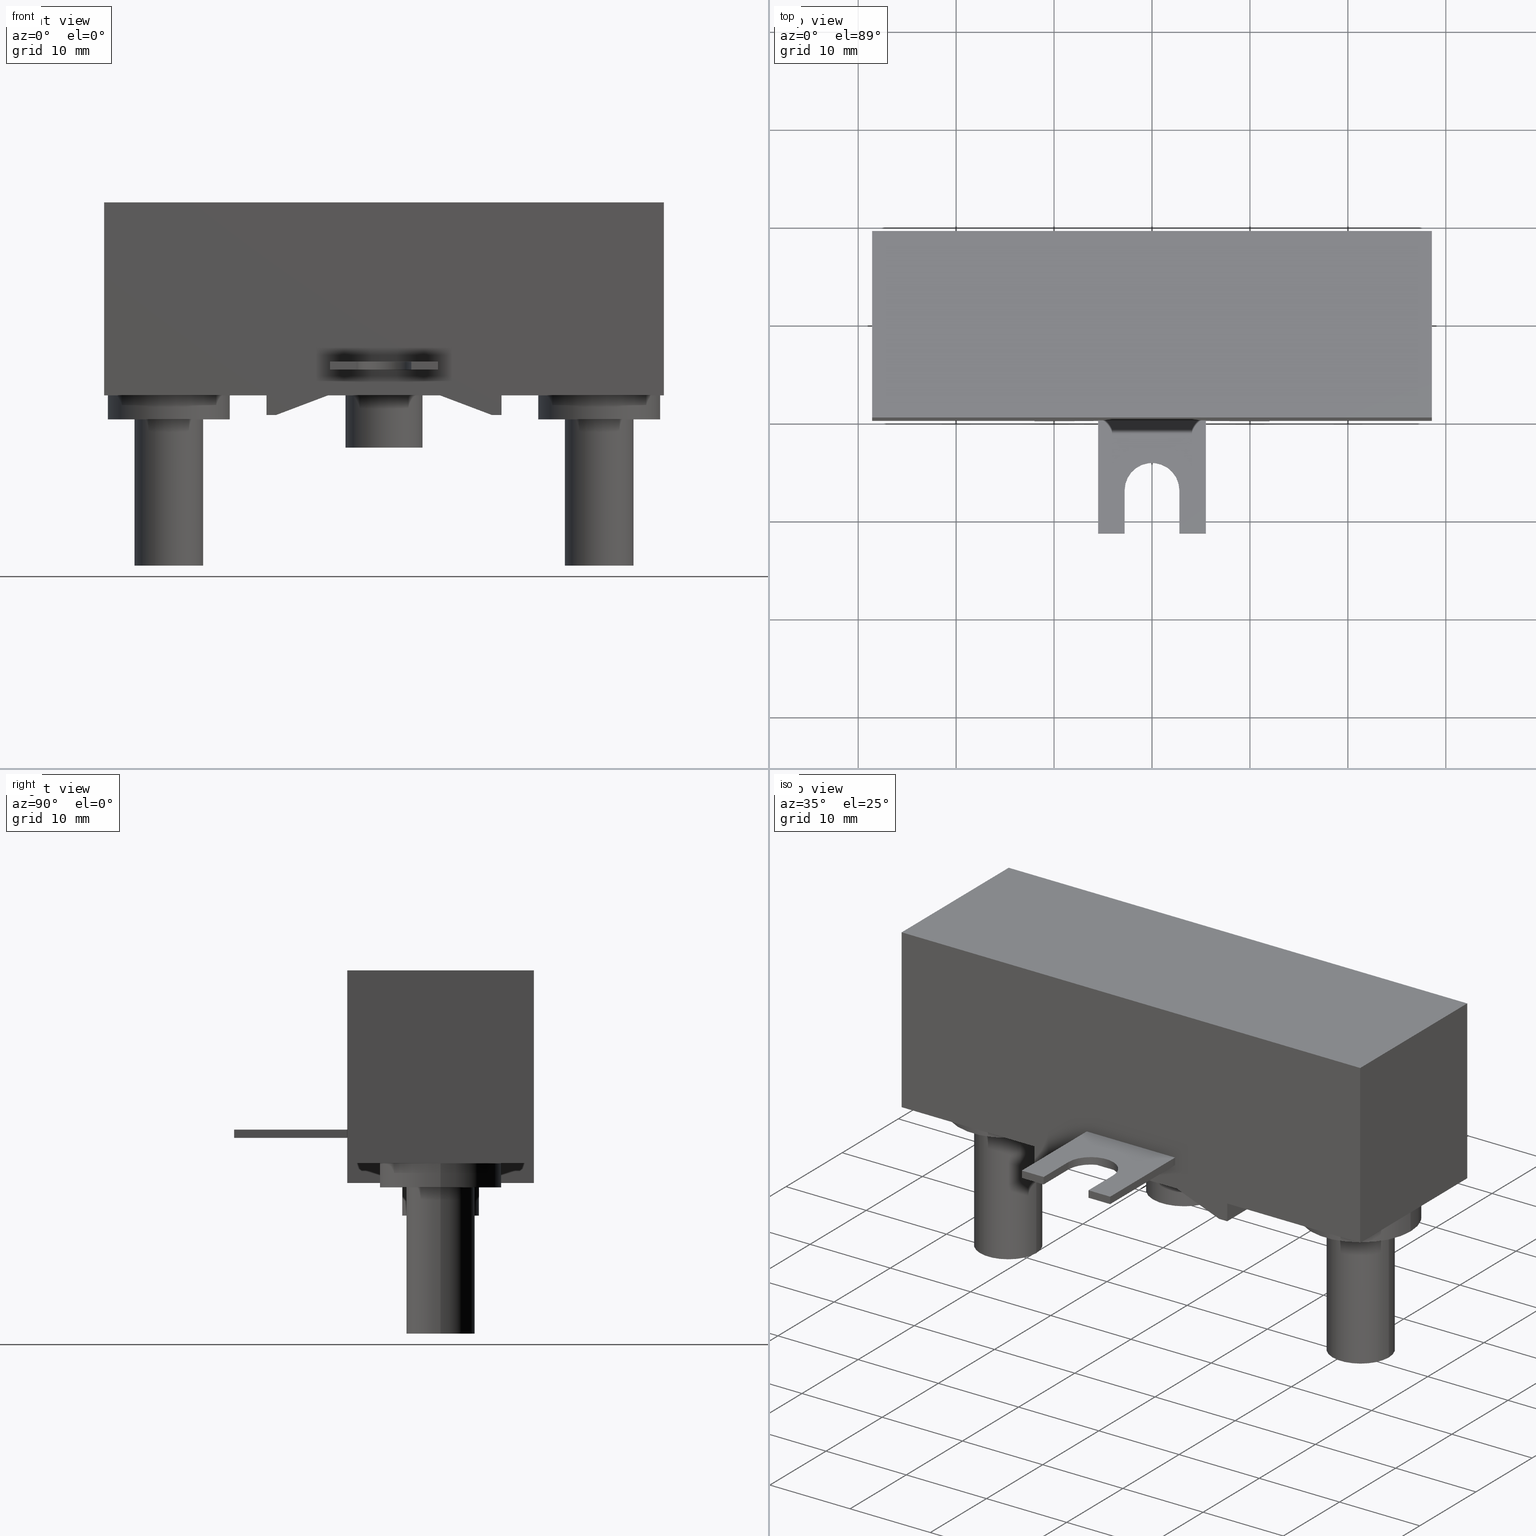
[diagram: canonical four-view strip — front | top / right | iso, engineering-drawing reading convention]
A machine part, canonical four-view strip (front | top / right | iso — engineering-drawing reading convention). The complete STEP part file that produces these views, byte-faithful:
ISO-10303-21;
HEADER;
FILE_DESCRIPTION((''),'2;1');
FILE_NAME('2377-45-HS','2012-08-28T',('ryans'),('Bourns, Inc.'),
'PRO/ENGINEER BY PARAMETRIC TECHNOLOGY CORPORATION, 2010100',
'PRO/ENGINEER BY PARAMETRIC TECHNOLOGY CORPORATION, 2010100','');
FILE_SCHEMA(('CONFIG_CONTROL_DESIGN'));
ENDSEC;
DATA;
#1=DIRECTION('',(0.E0,0.E0,1.E0));
#2=VECTOR('',#1,1.97E1);
#3=CARTESIAN_POINT('',(-2.8575E1,0.E0,-9.85E0));
#4=LINE('',#3,#2);
#5=DIRECTION('',(1.E0,0.E0,0.E0));
#6=VECTOR('',#5,5.715E1);
#7=CARTESIAN_POINT('',(-2.8575E1,0.E0,9.85E0));
#8=LINE('',#7,#6);
#9=DIRECTION('',(0.E0,0.E0,-1.E0));
#10=VECTOR('',#9,1.97E1);
#11=CARTESIAN_POINT('',(2.8575E1,0.E0,9.85E0));
#12=LINE('',#11,#10);
#13=DIRECTION('',(-1.E0,0.E0,0.E0));
#14=VECTOR('',#13,1.6575E1);
#15=CARTESIAN_POINT('',(2.8575E1,0.E0,-9.85E0));
#16=LINE('',#15,#14);
#17=DIRECTION('',(0.E0,0.E0,-1.E0));
#18=VECTOR('',#17,2.E0);
#19=CARTESIAN_POINT('',(1.2E1,0.E0,-9.85E0));
#20=LINE('',#19,#18);
#21=DIRECTION('',(-1.E0,0.E0,0.E0));
#22=VECTOR('',#21,1.E0);
#23=CARTESIAN_POINT('',(1.2E1,0.E0,-1.185E1));
#24=LINE('',#23,#22);
#25=DIRECTION('',(-9.352704256096E-1,0.E0,3.539339358977E-1));
#26=VECTOR('',#25,5.650772071142E0);
#27=CARTESIAN_POINT('',(1.1E1,0.E0,-1.185E1));
#28=LINE('',#27,#26);
#29=DIRECTION('',(-1.E0,0.E0,0.E0));
#30=VECTOR('',#29,1.143E1);
#31=CARTESIAN_POINT('',(5.715E0,0.E0,-9.85E0));
#32=LINE('',#31,#30);
#33=DIRECTION('',(-9.352704256096E-1,0.E0,-3.539339358977E-1));
#34=VECTOR('',#33,5.650772071142E0);
#35=CARTESIAN_POINT('',(-5.715E0,0.E0,-9.85E0));
#36=LINE('',#35,#34);
#37=DIRECTION('',(-1.E0,0.E0,0.E0));
#38=VECTOR('',#37,1.E0);
#39=CARTESIAN_POINT('',(-1.1E1,0.E0,-1.185E1));
#40=LINE('',#39,#38);
#41=DIRECTION('',(0.E0,0.E0,1.E0));
#42=VECTOR('',#41,2.E0);
#43=CARTESIAN_POINT('',(-1.2E1,0.E0,-1.185E1));
#44=LINE('',#43,#42);
#45=DIRECTION('',(-1.E0,0.E0,0.E0));
#46=VECTOR('',#45,1.6575E1);
#47=CARTESIAN_POINT('',(-1.2E1,0.E0,-9.85E0));
#48=LINE('',#47,#46);
#49=DIRECTION('',(1.E0,0.E0,0.E0));
#50=VECTOR('',#49,1.1E1);
#51=CARTESIAN_POINT('',(-5.5E0,0.E0,-6.41E0));
#52=LINE('',#51,#50);
#53=DIRECTION('',(0.E0,0.E0,-1.E0));
#54=VECTOR('',#53,8.4E-1);
#55=CARTESIAN_POINT('',(-5.5E0,0.E0,-6.41E0));
#56=LINE('',#55,#54);
#57=DIRECTION('',(1.E0,0.E0,0.E0));
#58=VECTOR('',#57,1.1E1);
#59=CARTESIAN_POINT('',(-5.5E0,0.E0,-7.25E0));
#60=LINE('',#59,#58);
#61=DIRECTION('',(0.E0,0.E0,-1.E0));
#62=VECTOR('',#61,8.4E-1);
#63=CARTESIAN_POINT('',(5.5E0,0.E0,-6.41E0));
#64=LINE('',#63,#62);
#65=DIRECTION('',(0.E0,1.E0,0.E0));
#66=VECTOR('',#65,1.905E1);
#67=CARTESIAN_POINT('',(-2.8575E1,0.E0,-9.85E0));
#68=LINE('',#67,#66);
#69=DIRECTION('',(0.E0,1.E0,0.E0));
#70=VECTOR('',#69,1.905E1);
#71=CARTESIAN_POINT('',(-1.2E1,0.E0,-9.85E0));
#72=LINE('',#71,#70);
#73=CARTESIAN_POINT('',(-2.197E1,9.525E0,-9.85E0));
#74=DIRECTION('',(0.E0,0.E0,-1.E0));
#75=DIRECTION('',(1.E0,0.E0,0.E0));
#76=AXIS2_PLACEMENT_3D('',#73,#74,#75);
#78=CARTESIAN_POINT('',(-2.197E1,9.525E0,-9.85E0));
#79=DIRECTION('',(0.E0,0.E0,-1.E0));
#80=DIRECTION('',(-1.E0,0.E0,0.E0));
#81=AXIS2_PLACEMENT_3D('',#78,#79,#80);
#83=DIRECTION('',(0.E0,1.E0,0.E0));
#84=VECTOR('',#83,1.905E1);
#85=CARTESIAN_POINT('',(-1.2E1,0.E0,-1.185E1));
#86=LINE('',#85,#84);
#87=DIRECTION('',(0.E0,1.E0,0.E0));
#88=VECTOR('',#87,1.905E1);
#89=CARTESIAN_POINT('',(-1.1E1,0.E0,-1.185E1));
#90=LINE('',#89,#88);
#91=DIRECTION('',(0.E0,1.E0,0.E0));
#92=VECTOR('',#91,1.905E1);
#93=CARTESIAN_POINT('',(-5.715E0,0.E0,-9.85E0));
#94=LINE('',#93,#92);
#95=DIRECTION('',(0.E0,1.E0,0.E0));
#96=VECTOR('',#95,1.905E1);
#97=CARTESIAN_POINT('',(5.715E0,0.E0,-9.85E0));
#98=LINE('',#97,#96);
#99=CARTESIAN_POINT('',(0.E0,9.525E0,-9.85E0));
#100=DIRECTION('',(0.E0,0.E0,-1.E0));
#101=DIRECTION('',(-1.E0,0.E0,0.E0));
#102=AXIS2_PLACEMENT_3D('',#99,#100,#101);
#104=CARTESIAN_POINT('',(0.E0,9.525E0,-9.85E0));
#105=DIRECTION('',(0.E0,0.E0,-1.E0));
#106=DIRECTION('',(1.E0,0.E0,0.E0));
#107=AXIS2_PLACEMENT_3D('',#104,#105,#106);
#109=DIRECTION('',(0.E0,1.E0,0.E0));
#110=VECTOR('',#109,1.905E1);
#111=CARTESIAN_POINT('',(1.1E1,0.E0,-1.185E1));
#112=LINE('',#111,#110);
#113=DIRECTION('',(0.E0,1.E0,0.E0));
#114=VECTOR('',#113,1.905E1);
#115=CARTESIAN_POINT('',(1.2E1,0.E0,-1.185E1));
#116=LINE('',#115,#114);
#117=DIRECTION('',(0.E0,1.E0,0.E0));
#118=VECTOR('',#117,1.905E1);
#119=CARTESIAN_POINT('',(1.2E1,0.E0,-9.85E0));
#120=LINE('',#119,#118);
#121=DIRECTION('',(0.E0,1.E0,0.E0));
#122=VECTOR('',#121,1.905E1);
#123=CARTESIAN_POINT('',(2.8575E1,0.E0,-9.85E0));
#124=LINE('',#123,#122);
#125=CARTESIAN_POINT('',(2.197E1,9.525E0,-9.85E0));
#126=DIRECTION('',(0.E0,0.E0,-1.E0));
#127=DIRECTION('',(1.E0,0.E0,0.E0));
#128=AXIS2_PLACEMENT_3D('',#125,#126,#127);
#130=CARTESIAN_POINT('',(2.197E1,9.525E0,-9.85E0));
#131=DIRECTION('',(0.E0,0.E0,-1.E0));
#132=DIRECTION('',(-1.E0,0.E0,0.E0));
#133=AXIS2_PLACEMENT_3D('',#130,#131,#132);
#135=DIRECTION('',(0.E0,1.E0,0.E0));
#136=VECTOR('',#135,1.905E1);
#137=CARTESIAN_POINT('',(2.8575E1,0.E0,9.85E0));
#138=LINE('',#137,#136);
#139=DIRECTION('',(0.E0,1.E0,0.E0));
#140=VECTOR('',#139,1.905E1);
#141=CARTESIAN_POINT('',(-2.8575E1,0.E0,9.85E0));
#142=LINE('',#141,#140);
#143=DIRECTION('',(0.E0,0.E0,1.E0));
#144=VECTOR('',#143,1.97E1);
#145=CARTESIAN_POINT('',(-2.8575E1,1.905E1,-9.85E0));
#146=LINE('',#145,#144);
#147=DIRECTION('',(-1.E0,0.E0,0.E0));
#148=VECTOR('',#147,1.6575E1);
#149=CARTESIAN_POINT('',(-1.2E1,1.905E1,-9.85E0));
#150=LINE('',#149,#148);
#151=DIRECTION('',(0.E0,0.E0,1.E0));
#152=VECTOR('',#151,2.E0);
#153=CARTESIAN_POINT('',(-1.2E1,1.905E1,-1.185E1));
#154=LINE('',#153,#152);
#155=DIRECTION('',(-1.E0,0.E0,0.E0));
#156=VECTOR('',#155,1.E0);
#157=CARTESIAN_POINT('',(-1.1E1,1.905E1,-1.185E1));
#158=LINE('',#157,#156);
#159=DIRECTION('',(-9.352704256096E-1,0.E0,-3.539339358977E-1));
#160=VECTOR('',#159,5.650772071142E0);
#161=CARTESIAN_POINT('',(-5.715E0,1.905E1,-9.85E0));
#162=LINE('',#161,#160);
#163=DIRECTION('',(-1.E0,0.E0,0.E0));
#164=VECTOR('',#163,1.143E1);
#165=CARTESIAN_POINT('',(5.715E0,1.905E1,-9.85E0));
#166=LINE('',#165,#164);
#167=DIRECTION('',(-9.352704256096E-1,0.E0,3.539339358977E-1));
#168=VECTOR('',#167,5.650772071142E0);
#169=CARTESIAN_POINT('',(1.1E1,1.905E1,-1.185E1));
#170=LINE('',#169,#168);
#171=DIRECTION('',(-1.E0,0.E0,0.E0));
#172=VECTOR('',#171,1.E0);
#173=CARTESIAN_POINT('',(1.2E1,1.905E1,-1.185E1));
#174=LINE('',#173,#172);
#175=DIRECTION('',(0.E0,0.E0,-1.E0));
#176=VECTOR('',#175,2.E0);
#177=CARTESIAN_POINT('',(1.2E1,1.905E1,-9.85E0));
#178=LINE('',#177,#176);
#179=DIRECTION('',(-1.E0,0.E0,0.E0));
#180=VECTOR('',#179,1.6575E1);
#181=CARTESIAN_POINT('',(2.8575E1,1.905E1,-9.85E0));
#182=LINE('',#181,#180);
#183=DIRECTION('',(0.E0,0.E0,-1.E0));
#184=VECTOR('',#183,1.97E1);
#185=CARTESIAN_POINT('',(2.8575E1,1.905E1,9.85E0));
#186=LINE('',#185,#184);
#187=DIRECTION('',(1.E0,0.E0,0.E0));
#188=VECTOR('',#187,5.715E1);
#189=CARTESIAN_POINT('',(-2.8575E1,1.905E1,9.85E0));
#190=LINE('',#189,#188);
#191=DIRECTION('',(0.E0,0.E0,-1.E0));
#192=VECTOR('',#191,2.45E0);
#193=CARTESIAN_POINT('',(2.8195E1,9.525E0,-9.85E0));
#194=LINE('',#193,#192);
#195=DIRECTION('',(0.E0,0.E0,-1.E0));
#196=VECTOR('',#195,2.45E0);
#197=CARTESIAN_POINT('',(1.5745E1,9.525E0,-9.85E0));
#198=LINE('',#197,#196);
#199=CARTESIAN_POINT('',(2.197E1,9.525E0,-1.23E1));
#200=DIRECTION('',(0.E0,0.E0,-1.E0));
#201=DIRECTION('',(1.E0,0.E0,0.E0));
#202=AXIS2_PLACEMENT_3D('',#199,#200,#201);
#204=CARTESIAN_POINT('',(2.197E1,9.525E0,-1.23E1));
#205=DIRECTION('',(0.E0,0.E0,-1.E0));
#206=DIRECTION('',(-1.E0,0.E0,0.E0));
#207=AXIS2_PLACEMENT_3D('',#204,#205,#206);
#209=CARTESIAN_POINT('',(-2.197E1,9.525E0,-1.23E1));
#210=DIRECTION('',(0.E0,0.E0,-1.E0));
#211=DIRECTION('',(1.E0,0.E0,0.E0));
#212=AXIS2_PLACEMENT_3D('',#209,#210,#211);
#214=CARTESIAN_POINT('',(-2.197E1,9.525E0,-1.23E1));
#215=DIRECTION('',(0.E0,0.E0,-1.E0));
#216=DIRECTION('',(-1.E0,0.E0,0.E0));
#217=AXIS2_PLACEMENT_3D('',#214,#215,#216);
#219=CARTESIAN_POINT('',(2.197E1,9.525E0,-1.23E1));
#220=DIRECTION('',(0.E0,0.E0,-1.E0));
#221=DIRECTION('',(1.E0,0.E0,0.E0));
#222=AXIS2_PLACEMENT_3D('',#219,#220,#221);
#224=CARTESIAN_POINT('',(2.197E1,9.525E0,-1.23E1));
#225=DIRECTION('',(0.E0,0.E0,-1.E0));
#226=DIRECTION('',(-1.E0,0.E0,0.E0));
#227=AXIS2_PLACEMENT_3D('',#224,#225,#226);
#229=CARTESIAN_POINT('',(-2.197E1,9.525E0,-1.23E1));
#230=DIRECTION('',(0.E0,0.E0,-1.E0));
#231=DIRECTION('',(1.E0,0.E0,0.E0));
#232=AXIS2_PLACEMENT_3D('',#229,#230,#231);
#234=CARTESIAN_POINT('',(-2.197E1,9.525E0,-1.23E1));
#235=DIRECTION('',(0.E0,0.E0,-1.E0));
#236=DIRECTION('',(-1.E0,0.E0,0.E0));
#237=AXIS2_PLACEMENT_3D('',#234,#235,#236);
#239=DIRECTION('',(0.E0,0.E0,-1.E0));
#240=VECTOR('',#239,2.45E0);
#241=CARTESIAN_POINT('',(-1.5745E1,9.525E0,-9.85E0));
#242=LINE('',#241,#240);
#243=DIRECTION('',(0.E0,0.E0,-1.E0));
#244=VECTOR('',#243,2.45E0);
#245=CARTESIAN_POINT('',(-2.8195E1,9.525E0,-9.85E0));
#246=LINE('',#245,#244);
#247=DIRECTION('',(0.E0,0.E0,-1.E0));
#248=VECTOR('',#247,1.493E1);
#249=CARTESIAN_POINT('',(2.547E1,9.525E0,-1.23E1));
#250=LINE('',#249,#248);
#251=DIRECTION('',(0.E0,0.E0,-1.E0));
#252=VECTOR('',#251,1.493E1);
#253=CARTESIAN_POINT('',(1.847E1,9.525E0,-1.23E1));
#254=LINE('',#253,#252);
#255=CARTESIAN_POINT('',(2.197E1,9.525E0,-2.723E1));
#256=DIRECTION('',(0.E0,0.E0,-1.E0));
#257=DIRECTION('',(1.E0,0.E0,0.E0));
#258=AXIS2_PLACEMENT_3D('',#255,#256,#257);
#260=CARTESIAN_POINT('',(2.197E1,9.525E0,-2.723E1));
#261=DIRECTION('',(0.E0,0.E0,-1.E0));
#262=DIRECTION('',(-1.E0,0.E0,0.E0));
#263=AXIS2_PLACEMENT_3D('',#260,#261,#262);
#265=CARTESIAN_POINT('',(-2.197E1,9.525E0,-2.723E1));
#266=DIRECTION('',(0.E0,0.E0,-1.E0));
#267=DIRECTION('',(1.E0,0.E0,0.E0));
#268=AXIS2_PLACEMENT_3D('',#265,#266,#267);
#270=CARTESIAN_POINT('',(-2.197E1,9.525E0,-2.723E1));
#271=DIRECTION('',(0.E0,0.E0,-1.E0));
#272=DIRECTION('',(-1.E0,0.E0,0.E0));
#273=AXIS2_PLACEMENT_3D('',#270,#271,#272);
#275=DIRECTION('',(0.E0,0.E0,-1.E0));
#276=VECTOR('',#275,1.493E1);
#277=CARTESIAN_POINT('',(-1.847E1,9.525E0,-1.23E1));
#278=LINE('',#277,#276);
#279=DIRECTION('',(0.E0,0.E0,-1.E0));
#280=VECTOR('',#279,1.493E1);
#281=CARTESIAN_POINT('',(-2.547E1,9.525E0,-1.23E1));
#282=LINE('',#281,#280);
#283=DIRECTION('',(0.E0,0.E0,-1.E0));
#284=VECTOR('',#283,5.33E0);
#285=CARTESIAN_POINT('',(-3.935E0,9.525E0,-9.85E0));
#286=LINE('',#285,#284);
#287=DIRECTION('',(0.E0,0.E0,-1.E0));
#288=VECTOR('',#287,5.33E0);
#289=CARTESIAN_POINT('',(3.935E0,9.525E0,-9.85E0));
#290=LINE('',#289,#288);
#291=CARTESIAN_POINT('',(0.E0,9.525E0,-1.518E1));
#292=DIRECTION('',(0.E0,0.E0,-1.E0));
#293=DIRECTION('',(-1.E0,0.E0,0.E0));
#294=AXIS2_PLACEMENT_3D('',#291,#292,#293);
#296=CARTESIAN_POINT('',(0.E0,9.525E0,-1.518E1));
#297=DIRECTION('',(0.E0,0.E0,-1.E0));
#298=DIRECTION('',(1.E0,0.E0,0.E0));
#299=AXIS2_PLACEMENT_3D('',#296,#297,#298);
#301=CARTESIAN_POINT('',(0.E0,-7.136E0,-6.41E0));
#302=DIRECTION('',(0.E0,0.E0,-1.E0));
#303=DIRECTION('',(-1.E0,0.E0,0.E0));
#304=AXIS2_PLACEMENT_3D('',#301,#302,#303);
#306=DIRECTION('',(0.E0,1.E0,0.E0));
#307=VECTOR('',#306,4.414E0);
#308=CARTESIAN_POINT('',(-2.795E0,-1.155E1,-6.41E0));
#309=LINE('',#308,#307);
#310=DIRECTION('',(-1.E0,0.E0,0.E0));
#311=VECTOR('',#310,2.705E0);
#312=CARTESIAN_POINT('',(-2.795E0,-1.155E1,-6.41E0));
#313=LINE('',#312,#311);
#314=DIRECTION('',(0.E0,1.E0,0.E0));
#315=VECTOR('',#314,1.155E1);
#316=CARTESIAN_POINT('',(-5.5E0,-1.155E1,-6.41E0));
#317=LINE('',#316,#315);
#318=DIRECTION('',(0.E0,-1.E0,0.E0));
#319=VECTOR('',#318,1.155E1);
#320=CARTESIAN_POINT('',(5.5E0,0.E0,-6.41E0));
#321=LINE('',#320,#319);
#322=DIRECTION('',(-1.E0,0.E0,0.E0));
#323=VECTOR('',#322,2.705E0);
#324=CARTESIAN_POINT('',(5.5E0,-1.155E1,-6.41E0));
#325=LINE('',#324,#323);
#326=DIRECTION('',(0.E0,1.E0,0.E0));
#327=VECTOR('',#326,4.414E0);
#328=CARTESIAN_POINT('',(2.795E0,-1.155E1,-6.41E0));
#329=LINE('',#328,#327);
#330=DIRECTION('',(0.E0,0.E0,1.E0));
#331=VECTOR('',#330,8.4E-1);
#332=CARTESIAN_POINT('',(-2.795E0,-7.136E0,-7.25E0));
#333=LINE('',#332,#331);
#334=DIRECTION('',(0.E0,0.E0,1.E0));
#335=VECTOR('',#334,8.4E-1);
#336=CARTESIAN_POINT('',(2.795E0,-7.136E0,-7.25E0));
#337=LINE('',#336,#335);
#338=DIRECTION('',(0.E0,0.E0,-1.E0));
#339=VECTOR('',#338,8.4E-1);
#340=CARTESIAN_POINT('',(2.795E0,-1.155E1,-6.41E0));
#341=LINE('',#340,#339);
#342=DIRECTION('',(0.E0,0.E0,-1.E0));
#343=VECTOR('',#342,8.4E-1);
#344=CARTESIAN_POINT('',(5.5E0,-1.155E1,-6.41E0));
#345=LINE('',#344,#343);
#346=DIRECTION('',(0.E0,0.E0,-1.E0));
#347=VECTOR('',#346,8.4E-1);
#348=CARTESIAN_POINT('',(-2.795E0,-1.155E1,-6.41E0));
#349=LINE('',#348,#347);
#350=CARTESIAN_POINT('',(0.E0,-7.136E0,-7.25E0));
#351=DIRECTION('',(0.E0,0.E0,-1.E0));
#352=DIRECTION('',(-1.E0,0.E0,0.E0));
#353=AXIS2_PLACEMENT_3D('',#350,#351,#352);
#355=DIRECTION('',(0.E0,1.E0,0.E0));
#356=VECTOR('',#355,4.414E0);
#357=CARTESIAN_POINT('',(2.795E0,-1.155E1,-7.25E0));
#358=LINE('',#357,#356);
#359=DIRECTION('',(-1.E0,0.E0,0.E0));
#360=VECTOR('',#359,2.705E0);
#361=CARTESIAN_POINT('',(5.5E0,-1.155E1,-7.25E0));
#362=LINE('',#361,#360);
#363=DIRECTION('',(0.E0,-1.E0,0.E0));
#364=VECTOR('',#363,1.155E1);
#365=CARTESIAN_POINT('',(5.5E0,0.E0,-7.25E0));
#366=LINE('',#365,#364);
#367=DIRECTION('',(0.E0,1.E0,0.E0));
#368=VECTOR('',#367,1.155E1);
#369=CARTESIAN_POINT('',(-5.5E0,-1.155E1,-7.25E0));
#370=LINE('',#369,#368);
#371=DIRECTION('',(-1.E0,0.E0,0.E0));
#372=VECTOR('',#371,2.705E0);
#373=CARTESIAN_POINT('',(-2.795E0,-1.155E1,-7.25E0));
#374=LINE('',#373,#372);
#375=DIRECTION('',(0.E0,1.E0,0.E0));
#376=VECTOR('',#375,4.414E0);
#377=CARTESIAN_POINT('',(-2.795E0,-1.155E1,-7.25E0));
#378=LINE('',#377,#376);
#379=DIRECTION('',(0.E0,0.E0,-1.E0));
#380=VECTOR('',#379,8.4E-1);
#381=CARTESIAN_POINT('',(-5.5E0,-1.155E1,-6.41E0));
#382=LINE('',#381,#380);
#383=CARTESIAN_POINT('',(-2.8575E1,0.E0,-9.85E0));
#384=CARTESIAN_POINT('',(-2.8575E1,0.E0,9.85E0));
#385=VERTEX_POINT('',#383);
#386=VERTEX_POINT('',#384);
#387=CARTESIAN_POINT('',(2.8575E1,0.E0,9.85E0));
#388=VERTEX_POINT('',#387);
#389=CARTESIAN_POINT('',(2.8575E1,0.E0,-9.85E0));
#390=VERTEX_POINT('',#389);
#391=CARTESIAN_POINT('',(-1.2E1,0.E0,-9.85E0));
#392=VERTEX_POINT('',#391);
#393=CARTESIAN_POINT('',(-2.8575E1,1.905E1,-9.85E0));
#394=CARTESIAN_POINT('',(-2.8575E1,1.905E1,9.85E0));
#395=VERTEX_POINT('',#393);
#396=VERTEX_POINT('',#394);
#397=CARTESIAN_POINT('',(2.8575E1,1.905E1,9.85E0));
#398=VERTEX_POINT('',#397);
#399=CARTESIAN_POINT('',(2.8575E1,1.905E1,-9.85E0));
#400=VERTEX_POINT('',#399);
#401=CARTESIAN_POINT('',(-1.2E1,1.905E1,-9.85E0));
#402=VERTEX_POINT('',#401);
#403=CARTESIAN_POINT('',(1.2E1,0.E0,-9.85E0));
#404=VERTEX_POINT('',#403);
#405=CARTESIAN_POINT('',(1.2E1,0.E0,-1.185E1));
#406=VERTEX_POINT('',#405);
#407=CARTESIAN_POINT('',(1.1E1,0.E0,-1.185E1));
#408=VERTEX_POINT('',#407);
#409=CARTESIAN_POINT('',(5.715E0,0.E0,-9.85E0));
#410=VERTEX_POINT('',#409);
#411=CARTESIAN_POINT('',(-5.715E0,0.E0,-9.85E0));
#412=VERTEX_POINT('',#411);
#413=CARTESIAN_POINT('',(-1.1E1,0.E0,-1.185E1));
#414=VERTEX_POINT('',#413);
#415=CARTESIAN_POINT('',(-1.2E1,0.E0,-1.185E1));
#416=VERTEX_POINT('',#415);
#417=CARTESIAN_POINT('',(1.2E1,1.905E1,-9.85E0));
#418=VERTEX_POINT('',#417);
#419=CARTESIAN_POINT('',(1.2E1,1.905E1,-1.185E1));
#420=VERTEX_POINT('',#419);
#421=CARTESIAN_POINT('',(1.1E1,1.905E1,-1.185E1));
#422=VERTEX_POINT('',#421);
#423=CARTESIAN_POINT('',(5.715E0,1.905E1,-9.85E0));
#424=VERTEX_POINT('',#423);
#425=CARTESIAN_POINT('',(-5.715E0,1.905E1,-9.85E0));
#426=VERTEX_POINT('',#425);
#427=CARTESIAN_POINT('',(-1.1E1,1.905E1,-1.185E1));
#428=VERTEX_POINT('',#427);
#429=CARTESIAN_POINT('',(-1.2E1,1.905E1,-1.185E1));
#430=VERTEX_POINT('',#429);
#431=CARTESIAN_POINT('',(2.8195E1,9.525E0,-1.23E1));
#432=CARTESIAN_POINT('',(1.5745E1,9.525E0,-1.23E1));
#433=VERTEX_POINT('',#431);
#434=VERTEX_POINT('',#432);
#435=CARTESIAN_POINT('',(-1.5745E1,9.525E0,-1.23E1));
#436=CARTESIAN_POINT('',(-2.8195E1,9.525E0,-1.23E1));
#437=VERTEX_POINT('',#435);
#438=VERTEX_POINT('',#436);
#439=CARTESIAN_POINT('',(-1.5745E1,9.525E0,-9.85E0));
#440=CARTESIAN_POINT('',(-2.8195E1,9.525E0,-9.85E0));
#441=VERTEX_POINT('',#439);
#442=VERTEX_POINT('',#440);
#443=CARTESIAN_POINT('',(2.8195E1,9.525E0,-9.85E0));
#444=CARTESIAN_POINT('',(1.5745E1,9.525E0,-9.85E0));
#445=VERTEX_POINT('',#443);
#446=VERTEX_POINT('',#444);
#447=CARTESIAN_POINT('',(2.547E1,9.525E0,-2.723E1));
#448=CARTESIAN_POINT('',(1.847E1,9.525E0,-2.723E1));
#449=VERTEX_POINT('',#447);
#450=VERTEX_POINT('',#448);
#451=CARTESIAN_POINT('',(-1.847E1,9.525E0,-2.723E1));
#452=CARTESIAN_POINT('',(-2.547E1,9.525E0,-2.723E1));
#453=VERTEX_POINT('',#451);
#454=VERTEX_POINT('',#452);
#455=CARTESIAN_POINT('',(2.547E1,9.525E0,-1.23E1));
#456=CARTESIAN_POINT('',(1.847E1,9.525E0,-1.23E1));
#457=VERTEX_POINT('',#455);
#458=VERTEX_POINT('',#456);
#459=CARTESIAN_POINT('',(-1.847E1,9.525E0,-1.23E1));
#460=CARTESIAN_POINT('',(-2.547E1,9.525E0,-1.23E1));
#461=VERTEX_POINT('',#459);
#462=VERTEX_POINT('',#460);
#463=CARTESIAN_POINT('',(-5.5E0,-1.155E1,-6.41E0));
#464=CARTESIAN_POINT('',(-5.5E0,-1.155E1,-7.25E0));
#465=VERTEX_POINT('',#463);
#466=VERTEX_POINT('',#464);
#467=CARTESIAN_POINT('',(5.5E0,-1.155E1,-6.41E0));
#468=CARTESIAN_POINT('',(5.5E0,-1.155E1,-7.25E0));
#469=VERTEX_POINT('',#467);
#470=VERTEX_POINT('',#468);
#471=CARTESIAN_POINT('',(-5.5E0,0.E0,-6.41E0));
#472=CARTESIAN_POINT('',(5.5E0,0.E0,-6.41E0));
#473=VERTEX_POINT('',#471);
#474=VERTEX_POINT('',#472);
#475=CARTESIAN_POINT('',(-5.5E0,0.E0,-7.25E0));
#476=CARTESIAN_POINT('',(5.5E0,0.E0,-7.25E0));
#477=VERTEX_POINT('',#475);
#478=VERTEX_POINT('',#476);
#479=CARTESIAN_POINT('',(-3.935E0,9.525E0,-1.518E1));
#480=CARTESIAN_POINT('',(3.935E0,9.525E0,-1.518E1));
#481=VERTEX_POINT('',#479);
#482=VERTEX_POINT('',#480);
#483=CARTESIAN_POINT('',(-3.935E0,9.525E0,-9.85E0));
#484=CARTESIAN_POINT('',(3.935E0,9.525E0,-9.85E0));
#485=VERTEX_POINT('',#483);
#486=VERTEX_POINT('',#484);
#487=CARTESIAN_POINT('',(-2.795E0,-7.136E0,-6.41E0));
#488=CARTESIAN_POINT('',(2.795E0,-7.136E0,-6.41E0));
#489=VERTEX_POINT('',#487);
#490=VERTEX_POINT('',#488);
#491=CARTESIAN_POINT('',(2.795E0,-1.155E1,-6.41E0));
#492=VERTEX_POINT('',#491);
#493=CARTESIAN_POINT('',(-2.795E0,-1.155E1,-6.41E0));
#494=VERTEX_POINT('',#493);
#495=CARTESIAN_POINT('',(-2.795E0,-7.136E0,-7.25E0));
#496=CARTESIAN_POINT('',(2.795E0,-7.136E0,-7.25E0));
#497=VERTEX_POINT('',#495);
#498=VERTEX_POINT('',#496);
#499=CARTESIAN_POINT('',(2.795E0,-1.155E1,-7.25E0));
#500=VERTEX_POINT('',#499);
#501=CARTESIAN_POINT('',(-2.795E0,-1.155E1,-7.25E0));
#502=VERTEX_POINT('',#501);
#503=CARTESIAN_POINT('',(0.E0,0.E0,0.E0));
#504=DIRECTION('',(0.E0,1.E0,0.E0));
#505=DIRECTION('',(1.E0,0.E0,0.E0));
#506=AXIS2_PLACEMENT_3D('',#503,#504,#505);
#507=PLANE('',#506);
#509=ORIENTED_EDGE('',*,*,#508,.T.);
#511=ORIENTED_EDGE('',*,*,#510,.T.);
#513=ORIENTED_EDGE('',*,*,#512,.T.);
#515=ORIENTED_EDGE('',*,*,#514,.T.);
#517=ORIENTED_EDGE('',*,*,#516,.T.);
#519=ORIENTED_EDGE('',*,*,#518,.T.);
#521=ORIENTED_EDGE('',*,*,#520,.T.);
#523=ORIENTED_EDGE('',*,*,#522,.T.);
#525=ORIENTED_EDGE('',*,*,#524,.T.);
#527=ORIENTED_EDGE('',*,*,#526,.T.);
#529=ORIENTED_EDGE('',*,*,#528,.T.);
#531=ORIENTED_EDGE('',*,*,#530,.T.);
#532=EDGE_LOOP('',(#509,#511,#513,#515,#517,#519,#521,#523,#525,#527,#529,
#531));
#533=FACE_OUTER_BOUND('',#532,.F.);
#535=ORIENTED_EDGE('',*,*,#534,.F.);
#537=ORIENTED_EDGE('',*,*,#536,.T.);
#539=ORIENTED_EDGE('',*,*,#538,.T.);
#541=ORIENTED_EDGE('',*,*,#540,.F.);
#542=EDGE_LOOP('',(#535,#537,#539,#541));
#543=FACE_BOUND('',#542,.F.);
#545=CARTESIAN_POINT('',(-2.8575E1,0.E0,-9.85E0));
#546=DIRECTION('',(-1.E0,0.E0,0.E0));
#547=DIRECTION('',(0.E0,0.E0,1.E0));
#548=AXIS2_PLACEMENT_3D('',#545,#546,#547);
#549=PLANE('',#548);
#550=ORIENTED_EDGE('',*,*,#508,.F.);
#552=ORIENTED_EDGE('',*,*,#551,.T.);
#554=ORIENTED_EDGE('',*,*,#553,.T.);
#556=ORIENTED_EDGE('',*,*,#555,.F.);
#557=EDGE_LOOP('',(#550,#552,#554,#556));
#558=FACE_OUTER_BOUND('',#557,.F.);
#560=CARTESIAN_POINT('',(-1.2E1,0.E0,-9.85E0));
#561=DIRECTION('',(0.E0,0.E0,-1.E0));
#562=DIRECTION('',(-1.E0,0.E0,0.E0));
#563=AXIS2_PLACEMENT_3D('',#560,#561,#562);
#564=PLANE('',#563);
#565=ORIENTED_EDGE('',*,*,#530,.F.);
#567=ORIENTED_EDGE('',*,*,#566,.T.);
#569=ORIENTED_EDGE('',*,*,#568,.T.);
#570=ORIENTED_EDGE('',*,*,#551,.F.);
#571=EDGE_LOOP('',(#565,#567,#569,#570));
#572=FACE_OUTER_BOUND('',#571,.F.);
#574=ORIENTED_EDGE('',*,*,#573,.T.);
#576=ORIENTED_EDGE('',*,*,#575,.T.);
#577=EDGE_LOOP('',(#574,#576));
#578=FACE_BOUND('',#577,.F.);
#580=CARTESIAN_POINT('',(-1.2E1,0.E0,-1.185E1));
#581=DIRECTION('',(-1.E0,0.E0,0.E0));
#582=DIRECTION('',(0.E0,0.E0,1.E0));
#583=AXIS2_PLACEMENT_3D('',#580,#581,#582);
#584=PLANE('',#583);
#585=ORIENTED_EDGE('',*,*,#528,.F.);
#587=ORIENTED_EDGE('',*,*,#586,.T.);
#589=ORIENTED_EDGE('',*,*,#588,.T.);
#590=ORIENTED_EDGE('',*,*,#566,.F.);
#591=EDGE_LOOP('',(#585,#587,#589,#590));
#592=FACE_OUTER_BOUND('',#591,.F.);
#594=CARTESIAN_POINT('',(-1.1E1,0.E0,-1.185E1));
#595=DIRECTION('',(0.E0,0.E0,-1.E0));
#596=DIRECTION('',(-1.E0,0.E0,0.E0));
#597=AXIS2_PLACEMENT_3D('',#594,#595,#596);
#598=PLANE('',#597);
#599=ORIENTED_EDGE('',*,*,#526,.F.);
#601=ORIENTED_EDGE('',*,*,#600,.T.);
#603=ORIENTED_EDGE('',*,*,#602,.T.);
#604=ORIENTED_EDGE('',*,*,#586,.F.);
#605=EDGE_LOOP('',(#599,#601,#603,#604));
#606=FACE_OUTER_BOUND('',#605,.F.);
#608=CARTESIAN_POINT('',(-5.715E0,0.E0,-9.85E0));
#609=DIRECTION('',(3.539339358977E-1,0.E0,-9.352704256096E-1));
#610=DIRECTION('',(-9.352704256096E-1,0.E0,-3.539339358977E-1));
#611=AXIS2_PLACEMENT_3D('',#608,#609,#610);
#612=PLANE('',#611);
#613=ORIENTED_EDGE('',*,*,#524,.F.);
#615=ORIENTED_EDGE('',*,*,#614,.T.);
#617=ORIENTED_EDGE('',*,*,#616,.T.);
#618=ORIENTED_EDGE('',*,*,#600,.F.);
#619=EDGE_LOOP('',(#613,#615,#617,#618));
#620=FACE_OUTER_BOUND('',#619,.F.);
#622=CARTESIAN_POINT('',(5.715E0,0.E0,-9.85E0));
#623=DIRECTION('',(0.E0,0.E0,-1.E0));
#624=DIRECTION('',(-1.E0,0.E0,0.E0));
#625=AXIS2_PLACEMENT_3D('',#622,#623,#624);
#626=PLANE('',#625);
#627=ORIENTED_EDGE('',*,*,#522,.F.);
#629=ORIENTED_EDGE('',*,*,#628,.T.);
#631=ORIENTED_EDGE('',*,*,#630,.T.);
#632=ORIENTED_EDGE('',*,*,#614,.F.);
#633=EDGE_LOOP('',(#627,#629,#631,#632));
#634=FACE_OUTER_BOUND('',#633,.F.);
#636=ORIENTED_EDGE('',*,*,#635,.T.);
#638=ORIENTED_EDGE('',*,*,#637,.T.);
#639=EDGE_LOOP('',(#636,#638));
#640=FACE_BOUND('',#639,.F.);
#642=CARTESIAN_POINT('',(1.1E1,0.E0,-1.185E1));
#643=DIRECTION('',(-3.539339358977E-1,0.E0,-9.352704256096E-1));
#644=DIRECTION('',(-9.352704256096E-1,0.E0,3.539339358977E-1));
#645=AXIS2_PLACEMENT_3D('',#642,#643,#644);
#646=PLANE('',#645);
#647=ORIENTED_EDGE('',*,*,#520,.F.);
#649=ORIENTED_EDGE('',*,*,#648,.T.);
#651=ORIENTED_EDGE('',*,*,#650,.T.);
#652=ORIENTED_EDGE('',*,*,#628,.F.);
#653=EDGE_LOOP('',(#647,#649,#651,#652));
#654=FACE_OUTER_BOUND('',#653,.F.);
#656=CARTESIAN_POINT('',(1.2E1,0.E0,-1.185E1));
#657=DIRECTION('',(0.E0,0.E0,-1.E0));
#658=DIRECTION('',(-1.E0,0.E0,0.E0));
#659=AXIS2_PLACEMENT_3D('',#656,#657,#658);
#660=PLANE('',#659);
#661=ORIENTED_EDGE('',*,*,#518,.F.);
#663=ORIENTED_EDGE('',*,*,#662,.T.);
#665=ORIENTED_EDGE('',*,*,#664,.T.);
#666=ORIENTED_EDGE('',*,*,#648,.F.);
#667=EDGE_LOOP('',(#661,#663,#665,#666));
#668=FACE_OUTER_BOUND('',#667,.F.);
#670=CARTESIAN_POINT('',(1.2E1,0.E0,-9.85E0));
#671=DIRECTION('',(1.E0,0.E0,0.E0));
#672=DIRECTION('',(0.E0,0.E0,-1.E0));
#673=AXIS2_PLACEMENT_3D('',#670,#671,#672);
#674=PLANE('',#673);
#675=ORIENTED_EDGE('',*,*,#516,.F.);
#677=ORIENTED_EDGE('',*,*,#676,.T.);
#679=ORIENTED_EDGE('',*,*,#678,.T.);
#680=ORIENTED_EDGE('',*,*,#662,.F.);
#681=EDGE_LOOP('',(#675,#677,#679,#680));
#682=FACE_OUTER_BOUND('',#681,.F.);
#684=CARTESIAN_POINT('',(2.8575E1,0.E0,-9.85E0));
#685=DIRECTION('',(0.E0,0.E0,-1.E0));
#686=DIRECTION('',(-1.E0,0.E0,0.E0));
#687=AXIS2_PLACEMENT_3D('',#684,#685,#686);
#688=PLANE('',#687);
#689=ORIENTED_EDGE('',*,*,#514,.F.);
#691=ORIENTED_EDGE('',*,*,#690,.T.);
#693=ORIENTED_EDGE('',*,*,#692,.T.);
#694=ORIENTED_EDGE('',*,*,#676,.F.);
#695=EDGE_LOOP('',(#689,#691,#693,#694));
#696=FACE_OUTER_BOUND('',#695,.F.);
#698=ORIENTED_EDGE('',*,*,#697,.T.);
#700=ORIENTED_EDGE('',*,*,#699,.T.);
#701=EDGE_LOOP('',(#698,#700));
#702=FACE_BOUND('',#701,.F.);
#704=CARTESIAN_POINT('',(2.8575E1,0.E0,9.85E0));
#705=DIRECTION('',(1.E0,0.E0,0.E0));
#706=DIRECTION('',(0.E0,0.E0,-1.E0));
#707=AXIS2_PLACEMENT_3D('',#704,#705,#706);
#708=PLANE('',#707);
#709=ORIENTED_EDGE('',*,*,#512,.F.);
#711=ORIENTED_EDGE('',*,*,#710,.T.);
#713=ORIENTED_EDGE('',*,*,#712,.T.);
#714=ORIENTED_EDGE('',*,*,#690,.F.);
#715=EDGE_LOOP('',(#709,#711,#713,#714));
#716=FACE_OUTER_BOUND('',#715,.F.);
#718=CARTESIAN_POINT('',(-2.8575E1,0.E0,9.85E0));
#719=DIRECTION('',(0.E0,0.E0,1.E0));
#720=DIRECTION('',(1.E0,0.E0,0.E0));
#721=AXIS2_PLACEMENT_3D('',#718,#719,#720);
#722=PLANE('',#721);
#723=ORIENTED_EDGE('',*,*,#510,.F.);
#724=ORIENTED_EDGE('',*,*,#555,.T.);
#726=ORIENTED_EDGE('',*,*,#725,.T.);
#727=ORIENTED_EDGE('',*,*,#710,.F.);
#728=EDGE_LOOP('',(#723,#724,#726,#727));
#729=FACE_OUTER_BOUND('',#728,.F.);
#731=CARTESIAN_POINT('',(0.E0,1.905E1,0.E0));
#732=DIRECTION('',(0.E0,1.E0,0.E0));
#733=DIRECTION('',(1.E0,0.E0,0.E0));
#734=AXIS2_PLACEMENT_3D('',#731,#732,#733);
#735=PLANE('',#734);
#736=ORIENTED_EDGE('',*,*,#553,.F.);
#737=ORIENTED_EDGE('',*,*,#568,.F.);
#738=ORIENTED_EDGE('',*,*,#588,.F.);
#739=ORIENTED_EDGE('',*,*,#602,.F.);
#740=ORIENTED_EDGE('',*,*,#616,.F.);
#741=ORIENTED_EDGE('',*,*,#630,.F.);
#742=ORIENTED_EDGE('',*,*,#650,.F.);
#743=ORIENTED_EDGE('',*,*,#664,.F.);
#744=ORIENTED_EDGE('',*,*,#678,.F.);
#745=ORIENTED_EDGE('',*,*,#692,.F.);
#746=ORIENTED_EDGE('',*,*,#712,.F.);
#747=ORIENTED_EDGE('',*,*,#725,.F.);
#748=EDGE_LOOP('',(#736,#737,#738,#739,#740,#741,#742,#743,#744,#745,#746,
#747));
#749=FACE_OUTER_BOUND('',#748,.F.);
#751=CARTESIAN_POINT('',(2.197E1,9.525E0,-9.85E0));
#752=DIRECTION('',(0.E0,0.E0,-1.E0));
#753=DIRECTION('',(1.E0,0.E0,0.E0));
#754=AXIS2_PLACEMENT_3D('',#751,#752,#753);
#755=CYLINDRICAL_SURFACE('',#754,6.225E0);
#756=ORIENTED_EDGE('',*,*,#697,.F.);
#758=ORIENTED_EDGE('',*,*,#757,.T.);
#760=ORIENTED_EDGE('',*,*,#759,.T.);
#762=ORIENTED_EDGE('',*,*,#761,.F.);
#763=EDGE_LOOP('',(#756,#758,#760,#762));
#764=FACE_OUTER_BOUND('',#763,.F.);
#766=CARTESIAN_POINT('',(2.197E1,9.525E0,-9.85E0));
#767=DIRECTION('',(0.E0,0.E0,-1.E0));
#768=DIRECTION('',(1.E0,0.E0,0.E0));
#769=AXIS2_PLACEMENT_3D('',#766,#767,#768);
#770=CYLINDRICAL_SURFACE('',#769,6.225E0);
#771=ORIENTED_EDGE('',*,*,#699,.F.);
#772=ORIENTED_EDGE('',*,*,#761,.T.);
#774=ORIENTED_EDGE('',*,*,#773,.T.);
#775=ORIENTED_EDGE('',*,*,#757,.F.);
#776=EDGE_LOOP('',(#771,#772,#774,#775));
#777=FACE_OUTER_BOUND('',#776,.F.);
#779=CARTESIAN_POINT('',(0.E0,0.E0,-1.23E1));
#780=DIRECTION('',(0.E0,0.E0,-1.E0));
#781=DIRECTION('',(1.E0,0.E0,0.E0));
#782=AXIS2_PLACEMENT_3D('',#779,#780,#781);
#783=PLANE('',#782);
#784=ORIENTED_EDGE('',*,*,#759,.F.);
#785=ORIENTED_EDGE('',*,*,#773,.F.);
#786=EDGE_LOOP('',(#784,#785));
#787=FACE_OUTER_BOUND('',#786,.F.);
#789=ORIENTED_EDGE('',*,*,#788,.T.);
#791=ORIENTED_EDGE('',*,*,#790,.T.);
#792=EDGE_LOOP('',(#789,#791));
#793=FACE_BOUND('',#792,.F.);
#795=CARTESIAN_POINT('',(0.E0,0.E0,-1.23E1));
#796=DIRECTION('',(0.E0,0.E0,-1.E0));
#797=DIRECTION('',(1.E0,0.E0,0.E0));
#798=AXIS2_PLACEMENT_3D('',#795,#796,#797);
#799=PLANE('',#798);
#801=ORIENTED_EDGE('',*,*,#800,.F.);
#803=ORIENTED_EDGE('',*,*,#802,.F.);
#804=EDGE_LOOP('',(#801,#803));
#805=FACE_OUTER_BOUND('',#804,.F.);
#807=ORIENTED_EDGE('',*,*,#806,.T.);
#809=ORIENTED_EDGE('',*,*,#808,.T.);
#810=EDGE_LOOP('',(#807,#809));
#811=FACE_BOUND('',#810,.F.);
#813=CARTESIAN_POINT('',(-2.197E1,9.525E0,-9.85E0));
#814=DIRECTION('',(0.E0,0.E0,-1.E0));
#815=DIRECTION('',(1.E0,0.E0,0.E0));
#816=AXIS2_PLACEMENT_3D('',#813,#814,#815);
#817=CYLINDRICAL_SURFACE('',#816,6.225E0);
#818=ORIENTED_EDGE('',*,*,#573,.F.);
#820=ORIENTED_EDGE('',*,*,#819,.T.);
#821=ORIENTED_EDGE('',*,*,#800,.T.);
#823=ORIENTED_EDGE('',*,*,#822,.F.);
#824=EDGE_LOOP('',(#818,#820,#821,#823));
#825=FACE_OUTER_BOUND('',#824,.F.);
#827=CARTESIAN_POINT('',(-2.197E1,9.525E0,-9.85E0));
#828=DIRECTION('',(0.E0,0.E0,-1.E0));
#829=DIRECTION('',(1.E0,0.E0,0.E0));
#830=AXIS2_PLACEMENT_3D('',#827,#828,#829);
#831=CYLINDRICAL_SURFACE('',#830,6.225E0);
#832=ORIENTED_EDGE('',*,*,#575,.F.);
#833=ORIENTED_EDGE('',*,*,#822,.T.);
#834=ORIENTED_EDGE('',*,*,#802,.T.);
#835=ORIENTED_EDGE('',*,*,#819,.F.);
#836=EDGE_LOOP('',(#832,#833,#834,#835));
#837=FACE_OUTER_BOUND('',#836,.F.);
#839=CARTESIAN_POINT('',(2.197E1,9.525E0,-1.23E1));
#840=DIRECTION('',(0.E0,0.E0,-1.E0));
#841=DIRECTION('',(1.E0,0.E0,0.E0));
#842=AXIS2_PLACEMENT_3D('',#839,#840,#841);
#843=CYLINDRICAL_SURFACE('',#842,3.5E0);
#844=ORIENTED_EDGE('',*,*,#788,.F.);
#846=ORIENTED_EDGE('',*,*,#845,.T.);
#848=ORIENTED_EDGE('',*,*,#847,.T.);
#850=ORIENTED_EDGE('',*,*,#849,.F.);
#851=EDGE_LOOP('',(#844,#846,#848,#850));
#852=FACE_OUTER_BOUND('',#851,.F.);
#854=CARTESIAN_POINT('',(2.197E1,9.525E0,-1.23E1));
#855=DIRECTION('',(0.E0,0.E0,-1.E0));
#856=DIRECTION('',(1.E0,0.E0,0.E0));
#857=AXIS2_PLACEMENT_3D('',#854,#855,#856);
#858=CYLINDRICAL_SURFACE('',#857,3.5E0);
#859=ORIENTED_EDGE('',*,*,#790,.F.);
#860=ORIENTED_EDGE('',*,*,#849,.T.);
#862=ORIENTED_EDGE('',*,*,#861,.T.);
#863=ORIENTED_EDGE('',*,*,#845,.F.);
#864=EDGE_LOOP('',(#859,#860,#862,#863));
#865=FACE_OUTER_BOUND('',#864,.F.);
#867=CARTESIAN_POINT('',(0.E0,0.E0,-2.723E1));
#868=DIRECTION('',(0.E0,0.E0,-1.E0));
#869=DIRECTION('',(1.E0,0.E0,0.E0));
#870=AXIS2_PLACEMENT_3D('',#867,#868,#869);
#871=PLANE('',#870);
#872=ORIENTED_EDGE('',*,*,#847,.F.);
#873=ORIENTED_EDGE('',*,*,#861,.F.);
#874=EDGE_LOOP('',(#872,#873));
#875=FACE_OUTER_BOUND('',#874,.F.);
#877=CARTESIAN_POINT('',(0.E0,0.E0,-2.723E1));
#878=DIRECTION('',(0.E0,0.E0,-1.E0));
#879=DIRECTION('',(1.E0,0.E0,0.E0));
#880=AXIS2_PLACEMENT_3D('',#877,#878,#879);
#881=PLANE('',#880);
#883=ORIENTED_EDGE('',*,*,#882,.F.);
#885=ORIENTED_EDGE('',*,*,#884,.F.);
#886=EDGE_LOOP('',(#883,#885));
#887=FACE_OUTER_BOUND('',#886,.F.);
#889=CARTESIAN_POINT('',(-2.197E1,9.525E0,-1.23E1));
#890=DIRECTION('',(0.E0,0.E0,-1.E0));
#891=DIRECTION('',(1.E0,0.E0,0.E0));
#892=AXIS2_PLACEMENT_3D('',#889,#890,#891);
#893=CYLINDRICAL_SURFACE('',#892,3.5E0);
#894=ORIENTED_EDGE('',*,*,#806,.F.);
#896=ORIENTED_EDGE('',*,*,#895,.T.);
#897=ORIENTED_EDGE('',*,*,#882,.T.);
#899=ORIENTED_EDGE('',*,*,#898,.F.);
#900=EDGE_LOOP('',(#894,#896,#897,#899));
#901=FACE_OUTER_BOUND('',#900,.F.);
#903=CARTESIAN_POINT('',(-2.197E1,9.525E0,-1.23E1));
#904=DIRECTION('',(0.E0,0.E0,-1.E0));
#905=DIRECTION('',(1.E0,0.E0,0.E0));
#906=AXIS2_PLACEMENT_3D('',#903,#904,#905);
#907=CYLINDRICAL_SURFACE('',#906,3.5E0);
#908=ORIENTED_EDGE('',*,*,#808,.F.);
#909=ORIENTED_EDGE('',*,*,#898,.T.);
#910=ORIENTED_EDGE('',*,*,#884,.T.);
#911=ORIENTED_EDGE('',*,*,#895,.F.);
#912=EDGE_LOOP('',(#908,#909,#910,#911));
#913=FACE_OUTER_BOUND('',#912,.F.);
#915=CARTESIAN_POINT('',(0.E0,9.525E0,-9.85E0));
#916=DIRECTION('',(0.E0,0.E0,-1.E0));
#917=DIRECTION('',(-1.E0,0.E0,0.E0));
#918=AXIS2_PLACEMENT_3D('',#915,#916,#917);
#919=CYLINDRICAL_SURFACE('',#918,3.935E0);
#920=ORIENTED_EDGE('',*,*,#635,.F.);
#922=ORIENTED_EDGE('',*,*,#921,.T.);
#924=ORIENTED_EDGE('',*,*,#923,.T.);
#926=ORIENTED_EDGE('',*,*,#925,.F.);
#927=EDGE_LOOP('',(#920,#922,#924,#926));
#928=FACE_OUTER_BOUND('',#927,.F.);
#930=CARTESIAN_POINT('',(0.E0,9.525E0,-9.85E0));
#931=DIRECTION('',(0.E0,0.E0,-1.E0));
#932=DIRECTION('',(-1.E0,0.E0,0.E0));
#933=AXIS2_PLACEMENT_3D('',#930,#931,#932);
#934=CYLINDRICAL_SURFACE('',#933,3.935E0);
#935=ORIENTED_EDGE('',*,*,#637,.F.);
#936=ORIENTED_EDGE('',*,*,#925,.T.);
#938=ORIENTED_EDGE('',*,*,#937,.T.);
#939=ORIENTED_EDGE('',*,*,#921,.F.);
#940=EDGE_LOOP('',(#935,#936,#938,#939));
#941=FACE_OUTER_BOUND('',#940,.F.);
#943=CARTESIAN_POINT('',(0.E0,0.E0,-1.518E1));
#944=DIRECTION('',(0.E0,0.E0,-1.E0));
#945=DIRECTION('',(-1.E0,0.E0,0.E0));
#946=AXIS2_PLACEMENT_3D('',#943,#944,#945);
#947=PLANE('',#946);
#948=ORIENTED_EDGE('',*,*,#923,.F.);
#949=ORIENTED_EDGE('',*,*,#937,.F.);
#950=EDGE_LOOP('',(#948,#949));
#951=FACE_OUTER_BOUND('',#950,.F.);
#953=CARTESIAN_POINT('',(0.E0,0.E0,-6.41E0));
#954=DIRECTION('',(0.E0,0.E0,-1.E0));
#955=DIRECTION('',(1.E0,0.E0,0.E0));
#956=AXIS2_PLACEMENT_3D('',#953,#954,#955);
#957=PLANE('',#956);
#959=ORIENTED_EDGE('',*,*,#958,.F.);
#961=ORIENTED_EDGE('',*,*,#960,.F.);
#963=ORIENTED_EDGE('',*,*,#962,.T.);
#965=ORIENTED_EDGE('',*,*,#964,.T.);
#966=ORIENTED_EDGE('',*,*,#534,.T.);
#968=ORIENTED_EDGE('',*,*,#967,.T.);
#970=ORIENTED_EDGE('',*,*,#969,.T.);
#972=ORIENTED_EDGE('',*,*,#971,.T.);
#973=EDGE_LOOP('',(#959,#961,#963,#965,#966,#968,#970,#972));
#974=FACE_OUTER_BOUND('',#973,.F.);
#976=CARTESIAN_POINT('',(0.E0,-7.136E0,-7.25E0));
#977=DIRECTION('',(0.E0,0.E0,-1.E0));
#978=DIRECTION('',(-1.E0,0.E0,0.E0));
#979=AXIS2_PLACEMENT_3D('',#976,#977,#978);
#980=CYLINDRICAL_SURFACE('',#979,2.795E0);
#981=ORIENTED_EDGE('',*,*,#958,.T.);
#983=ORIENTED_EDGE('',*,*,#982,.F.);
#985=ORIENTED_EDGE('',*,*,#984,.F.);
#987=ORIENTED_EDGE('',*,*,#986,.T.);
#988=EDGE_LOOP('',(#981,#983,#985,#987));
#989=FACE_OUTER_BOUND('',#988,.F.);
#991=CARTESIAN_POINT('',(2.795E0,-7.136E0,-7.25E0));
#992=DIRECTION('',(1.E0,0.E0,0.E0));
#993=DIRECTION('',(0.E0,-1.E0,0.E0));
#994=AXIS2_PLACEMENT_3D('',#991,#992,#993);
#995=PLANE('',#994);
#996=ORIENTED_EDGE('',*,*,#971,.F.);
#998=ORIENTED_EDGE('',*,*,#997,.T.);
#1000=ORIENTED_EDGE('',*,*,#999,.T.);
#1001=ORIENTED_EDGE('',*,*,#982,.T.);
#1002=EDGE_LOOP('',(#996,#998,#1000,#1001));
#1003=FACE_OUTER_BOUND('',#1002,.F.);
#1005=CARTESIAN_POINT('',(5.5E0,-1.155E1,-6.41E0));
#1006=DIRECTION('',(0.E0,-1.E0,0.E0));
#1007=DIRECTION('',(-1.E0,0.E0,0.E0));
#1008=AXIS2_PLACEMENT_3D('',#1005,#1006,#1007);
#1009=PLANE('',#1008);
#1010=ORIENTED_EDGE('',*,*,#997,.F.);
#1011=ORIENTED_EDGE('',*,*,#969,.F.);
#1013=ORIENTED_EDGE('',*,*,#1012,.T.);
#1015=ORIENTED_EDGE('',*,*,#1014,.T.);
#1016=EDGE_LOOP('',(#1010,#1011,#1013,#1015));
#1017=FACE_OUTER_BOUND('',#1016,.F.);
#1019=CARTESIAN_POINT('',(5.5E0,-1.155E1,-6.41E0));
#1020=DIRECTION('',(0.E0,-1.E0,0.E0));
#1021=DIRECTION('',(-1.E0,0.E0,0.E0));
#1022=AXIS2_PLACEMENT_3D('',#1019,#1020,#1021);
#1023=PLANE('',#1022);
#1025=ORIENTED_EDGE('',*,*,#1024,.T.);
#1027=ORIENTED_EDGE('',*,*,#1026,.T.);
#1029=ORIENTED_EDGE('',*,*,#1028,.F.);
#1030=ORIENTED_EDGE('',*,*,#962,.F.);
#1031=EDGE_LOOP('',(#1025,#1027,#1029,#1030));
#1032=FACE_OUTER_BOUND('',#1031,.F.);
#1034=CARTESIAN_POINT('',(5.5E0,1.040848062101E1,-6.41E0));
#1035=DIRECTION('',(1.E0,0.E0,0.E0));
#1036=DIRECTION('',(0.E0,-1.E0,0.E0));
#1037=AXIS2_PLACEMENT_3D('',#1034,#1035,#1036);
#1038=PLANE('',#1037);
#1039=ORIENTED_EDGE('',*,*,#540,.T.);
#1041=ORIENTED_EDGE('',*,*,#1040,.T.);
#1042=ORIENTED_EDGE('',*,*,#1012,.F.);
#1043=ORIENTED_EDGE('',*,*,#967,.F.);
#1044=EDGE_LOOP('',(#1039,#1041,#1042,#1043));
#1045=FACE_OUTER_BOUND('',#1044,.F.);
#1047=CARTESIAN_POINT('',(0.E0,0.E0,-7.25E0));
#1048=DIRECTION('',(0.E0,0.E0,-1.E0));
#1049=DIRECTION('',(1.E0,0.E0,0.E0));
#1050=AXIS2_PLACEMENT_3D('',#1047,#1048,#1049);
#1051=PLANE('',#1050);
#1052=ORIENTED_EDGE('',*,*,#984,.T.);
#1053=ORIENTED_EDGE('',*,*,#999,.F.);
#1054=ORIENTED_EDGE('',*,*,#1014,.F.);
#1055=ORIENTED_EDGE('',*,*,#1040,.F.);
#1056=ORIENTED_EDGE('',*,*,#538,.F.);
#1058=ORIENTED_EDGE('',*,*,#1057,.F.);
#1059=ORIENTED_EDGE('',*,*,#1026,.F.);
#1061=ORIENTED_EDGE('',*,*,#1060,.T.);
#1062=EDGE_LOOP('',(#1052,#1053,#1054,#1055,#1056,#1058,#1059,#1061));
#1063=FACE_OUTER_BOUND('',#1062,.F.);
#1065=CARTESIAN_POINT('',(-5.5E0,-1.155E1,-6.41E0));
#1066=DIRECTION('',(-1.E0,0.E0,0.E0));
#1067=DIRECTION('',(0.E0,1.E0,0.E0));
#1068=AXIS2_PLACEMENT_3D('',#1065,#1066,#1067);
#1069=PLANE('',#1068);
#1070=ORIENTED_EDGE('',*,*,#536,.F.);
#1071=ORIENTED_EDGE('',*,*,#964,.F.);
#1072=ORIENTED_EDGE('',*,*,#1028,.T.);
#1073=ORIENTED_EDGE('',*,*,#1057,.T.);
#1074=EDGE_LOOP('',(#1070,#1071,#1072,#1073));
#1075=FACE_OUTER_BOUND('',#1074,.F.);
#1077=CARTESIAN_POINT('',(-2.795E0,-1.197147863734E1,-7.25E0));
#1078=DIRECTION('',(-1.E0,0.E0,0.E0));
#1079=DIRECTION('',(0.E0,1.E0,0.E0));
#1080=AXIS2_PLACEMENT_3D('',#1077,#1078,#1079);
#1081=PLANE('',#1080);
#1082=ORIENTED_EDGE('',*,*,#960,.T.);
#1083=ORIENTED_EDGE('',*,*,#986,.F.);
#1084=ORIENTED_EDGE('',*,*,#1060,.F.);
#1085=ORIENTED_EDGE('',*,*,#1024,.F.);
#1086=EDGE_LOOP('',(#1082,#1083,#1084,#1085));
#1087=FACE_OUTER_BOUND('',#1086,.F.);
#1089=CLOSED_SHELL('',(#544,#559,#579,#593,#607,#621,#641,#655,#669,#683,#703,
#717,#730,#750,#765,#778,#794,#812,#826,#838,#853,#866,#876,#888,#902,#914,#929,
#942,#952,#975,#990,#1004,#1018,#1033,#1046,#1064,#1076,#1088));
#1090=MANIFOLD_SOLID_BREP('',#1089);
#1092=DIMENSIONAL_EXPONENTS(0.E0,0.E0,0.E0,0.E0,0.E0,0.E0,0.E0);
#1094=PLANE_ANGLE_MEASURE_WITH_UNIT(PLANE_ANGLE_MEASURE(1.745329251994E-2),
#1093);
#1095=(CONVERSION_BASED_UNIT('DEGREE',#1094)NAMED_UNIT(*)PLANE_ANGLE_UNIT());
#1097=UNCERTAINTY_MEASURE_WITH_UNIT(LENGTH_MEASURE(3.118864191666E-3),#1091,
'closure',
'Maximum model space distance between geometric entities at asserted connectivities');
#1100=APPLICATION_CONTEXT(
'CONFIGURATION CONTROLLED 3D DESIGNS OF MECHANICAL PARTS AND ASSEMBLIES');
#1101=APPLICATION_PROTOCOL_DEFINITION('international standard',
'config_control_design',1994,#1100);
#1102=DESIGN_CONTEXT('',#1100,'design');
#1103=MECHANICAL_CONTEXT('',#1100,'mechanical');
#1104=PRODUCT('2377-45-HS','2377-45-HS','NOT SPECIFIED',(#1103));
#1105=PRODUCT_DEFINITION_FORMATION_WITH_SPECIFIED_SOURCE('2','LAST_VERSION',
#1104,.MADE.);
#1109=PRODUCT_CATEGORY('part','');
#1110=PRODUCT_RELATED_PRODUCT_CATEGORY('detail','',(#1104));
#1111=PRODUCT_CATEGORY_RELATIONSHIP('','',#1109,#1110);
#1112=SECURITY_CLASSIFICATION_LEVEL('unclassified');
#1113=SECURITY_CLASSIFICATION('','',#1112);
#1114=CC_DESIGN_SECURITY_CLASSIFICATION(#1113,(#1105));
#1115=APPROVAL_STATUS('approved');
#1116=APPROVAL(#1115,'');
#1117=CC_DESIGN_APPROVAL(#1116,(#1113,#1105,#1106));
#1118=CALENDAR_DATE(112,28,8);
#1119=COORDINATED_UNIVERSAL_TIME_OFFSET(7,0,.BEHIND.);
#1120=LOCAL_TIME(14,8,1.3E1,#1119);
#1121=DATE_AND_TIME(#1118,#1120);
#1122=APPROVAL_DATE_TIME(#1121,#1116);
#1123=DATE_TIME_ROLE('creation_date');
#1124=CC_DESIGN_DATE_AND_TIME_ASSIGNMENT(#1121,#1123,(#1106));
#1125=DATE_TIME_ROLE('classification_date');
#1126=CC_DESIGN_DATE_AND_TIME_ASSIGNMENT(#1121,#1125,(#1113));
#1127=PERSON('UNSPECIFIED','UNSPECIFIED',$,$,$,$);
#1128=ORGANIZATION('UNSPECIFIED','UNSPECIFIED','UNSPECIFIED');
#1129=PERSON_AND_ORGANIZATION(#1127,#1128);
#1130=APPROVAL_ROLE('approver');
#1131=APPROVAL_PERSON_ORGANIZATION(#1129,#1116,#1130);
#1132=PERSON_AND_ORGANIZATION_ROLE('creator');
#1133=CC_DESIGN_PERSON_AND_ORGANIZATION_ASSIGNMENT(#1129,#1132,(#1105,#1106));
#1134=PERSON_AND_ORGANIZATION_ROLE('design_supplier');
#1135=CC_DESIGN_PERSON_AND_ORGANIZATION_ASSIGNMENT(#1129,#1134,(#1105));
#1136=PERSON_AND_ORGANIZATION_ROLE('classification_officer');
#1137=CC_DESIGN_PERSON_AND_ORGANIZATION_ASSIGNMENT(#1129,#1136,(#1113));
#1138=PERSON_AND_ORGANIZATION_ROLE('design_owner');
#1139=CC_DESIGN_PERSON_AND_ORGANIZATION_ASSIGNMENT(#1129,#1138,(#1104));
#77=CIRCLE('',#76,6.225E0);
#82=CIRCLE('',#81,6.225E0);
#103=CIRCLE('',#102,3.935E0);
#108=CIRCLE('',#107,3.935E0);
#129=CIRCLE('',#128,6.225E0);
#134=CIRCLE('',#133,6.225E0);
#203=CIRCLE('',#202,6.225E0);
#208=CIRCLE('',#207,6.225E0);
#213=CIRCLE('',#212,6.225E0);
#218=CIRCLE('',#217,6.225E0);
#223=CIRCLE('',#222,3.5E0);
#228=CIRCLE('',#227,3.5E0);
#233=CIRCLE('',#232,3.5E0);
#238=CIRCLE('',#237,3.5E0);
#259=CIRCLE('',#258,3.5E0);
#264=CIRCLE('',#263,3.5E0);
#269=CIRCLE('',#268,3.5E0);
#274=CIRCLE('',#273,3.5E0);
#295=CIRCLE('',#294,3.935E0);
#300=CIRCLE('',#299,3.935E0);
#305=CIRCLE('',#304,2.795E0);
#354=CIRCLE('',#353,2.795E0);
#508=EDGE_CURVE('',#385,#386,#4,.T.);
#510=EDGE_CURVE('',#386,#388,#8,.T.);
#512=EDGE_CURVE('',#388,#390,#12,.T.);
#514=EDGE_CURVE('',#390,#404,#16,.T.);
#516=EDGE_CURVE('',#404,#406,#20,.T.);
#518=EDGE_CURVE('',#406,#408,#24,.T.);
#520=EDGE_CURVE('',#408,#410,#28,.T.);
#522=EDGE_CURVE('',#410,#412,#32,.T.);
#524=EDGE_CURVE('',#412,#414,#36,.T.);
#526=EDGE_CURVE('',#414,#416,#40,.T.);
#528=EDGE_CURVE('',#416,#392,#44,.T.);
#530=EDGE_CURVE('',#392,#385,#48,.T.);
#534=EDGE_CURVE('',#473,#474,#52,.T.);
#536=EDGE_CURVE('',#473,#477,#56,.T.);
#538=EDGE_CURVE('',#477,#478,#60,.T.);
#540=EDGE_CURVE('',#474,#478,#64,.T.);
#544=ADVANCED_FACE('',(#533,#543),#507,.F.);
#551=EDGE_CURVE('',#385,#395,#68,.T.);
#553=EDGE_CURVE('',#395,#396,#146,.T.);
#555=EDGE_CURVE('',#386,#396,#142,.T.);
#559=ADVANCED_FACE('',(#558),#549,.T.);
#566=EDGE_CURVE('',#392,#402,#72,.T.);
#568=EDGE_CURVE('',#402,#395,#150,.T.);
#573=EDGE_CURVE('',#441,#442,#77,.T.);
#575=EDGE_CURVE('',#442,#441,#82,.T.);
#579=ADVANCED_FACE('',(#572,#578),#564,.T.);
#586=EDGE_CURVE('',#416,#430,#86,.T.);
#588=EDGE_CURVE('',#430,#402,#154,.T.);
#593=ADVANCED_FACE('',(#592),#584,.T.);
#600=EDGE_CURVE('',#414,#428,#90,.T.);
#602=EDGE_CURVE('',#428,#430,#158,.T.);
#607=ADVANCED_FACE('',(#606),#598,.T.);
#614=EDGE_CURVE('',#412,#426,#94,.T.);
#616=EDGE_CURVE('',#426,#428,#162,.T.);
#621=ADVANCED_FACE('',(#620),#612,.T.);
#628=EDGE_CURVE('',#410,#424,#98,.T.);
#630=EDGE_CURVE('',#424,#426,#166,.T.);
#635=EDGE_CURVE('',#485,#486,#103,.T.);
#637=EDGE_CURVE('',#486,#485,#108,.T.);
#641=ADVANCED_FACE('',(#634,#640),#626,.T.);
#648=EDGE_CURVE('',#408,#422,#112,.T.);
#650=EDGE_CURVE('',#422,#424,#170,.T.);
#655=ADVANCED_FACE('',(#654),#646,.T.);
#662=EDGE_CURVE('',#406,#420,#116,.T.);
#664=EDGE_CURVE('',#420,#422,#174,.T.);
#669=ADVANCED_FACE('',(#668),#660,.T.);
#676=EDGE_CURVE('',#404,#418,#120,.T.);
#678=EDGE_CURVE('',#418,#420,#178,.T.);
#683=ADVANCED_FACE('',(#682),#674,.T.);
#690=EDGE_CURVE('',#390,#400,#124,.T.);
#692=EDGE_CURVE('',#400,#418,#182,.T.);
#697=EDGE_CURVE('',#445,#446,#129,.T.);
#699=EDGE_CURVE('',#446,#445,#134,.T.);
#703=ADVANCED_FACE('',(#696,#702),#688,.T.);
#710=EDGE_CURVE('',#388,#398,#138,.T.);
#712=EDGE_CURVE('',#398,#400,#186,.T.);
#717=ADVANCED_FACE('',(#716),#708,.T.);
#725=EDGE_CURVE('',#396,#398,#190,.T.);
#730=ADVANCED_FACE('',(#729),#722,.T.);
#750=ADVANCED_FACE('',(#749),#735,.T.);
#757=EDGE_CURVE('',#445,#433,#194,.T.);
#759=EDGE_CURVE('',#433,#434,#203,.T.);
#761=EDGE_CURVE('',#446,#434,#198,.T.);
#765=ADVANCED_FACE('',(#764),#755,.T.);
#773=EDGE_CURVE('',#434,#433,#208,.T.);
#778=ADVANCED_FACE('',(#777),#770,.T.);
#788=EDGE_CURVE('',#457,#458,#223,.T.);
#790=EDGE_CURVE('',#458,#457,#228,.T.);
#794=ADVANCED_FACE('',(#787,#793),#783,.T.);
#800=EDGE_CURVE('',#437,#438,#213,.T.);
#802=EDGE_CURVE('',#438,#437,#218,.T.);
#806=EDGE_CURVE('',#461,#462,#233,.T.);
#808=EDGE_CURVE('',#462,#461,#238,.T.);
#812=ADVANCED_FACE('',(#805,#811),#799,.T.);
#819=EDGE_CURVE('',#441,#437,#242,.T.);
#822=EDGE_CURVE('',#442,#438,#246,.T.);
#826=ADVANCED_FACE('',(#825),#817,.T.);
#838=ADVANCED_FACE('',(#837),#831,.T.);
#845=EDGE_CURVE('',#457,#449,#250,.T.);
#847=EDGE_CURVE('',#449,#450,#259,.T.);
#849=EDGE_CURVE('',#458,#450,#254,.T.);
#853=ADVANCED_FACE('',(#852),#843,.T.);
#861=EDGE_CURVE('',#450,#449,#264,.T.);
#866=ADVANCED_FACE('',(#865),#858,.T.);
#876=ADVANCED_FACE('',(#875),#871,.T.);
#882=EDGE_CURVE('',#453,#454,#269,.T.);
#884=EDGE_CURVE('',#454,#453,#274,.T.);
#888=ADVANCED_FACE('',(#887),#881,.T.);
#895=EDGE_CURVE('',#461,#453,#278,.T.);
#898=EDGE_CURVE('',#462,#454,#282,.T.);
#902=ADVANCED_FACE('',(#901),#893,.T.);
#914=ADVANCED_FACE('',(#913),#907,.T.);
#921=EDGE_CURVE('',#485,#481,#286,.T.);
#923=EDGE_CURVE('',#481,#482,#295,.T.);
#925=EDGE_CURVE('',#486,#482,#290,.T.);
#929=ADVANCED_FACE('',(#928),#919,.T.);
#937=EDGE_CURVE('',#482,#481,#300,.T.);
#942=ADVANCED_FACE('',(#941),#934,.T.);
#952=ADVANCED_FACE('',(#951),#947,.T.);
#958=EDGE_CURVE('',#489,#490,#305,.T.);
#960=EDGE_CURVE('',#494,#489,#309,.T.);
#962=EDGE_CURVE('',#494,#465,#313,.T.);
#964=EDGE_CURVE('',#465,#473,#317,.T.);
#967=EDGE_CURVE('',#474,#469,#321,.T.);
#969=EDGE_CURVE('',#469,#492,#325,.T.);
#971=EDGE_CURVE('',#492,#490,#329,.T.);
#975=ADVANCED_FACE('',(#974),#957,.F.);
#982=EDGE_CURVE('',#498,#490,#337,.T.);
#984=EDGE_CURVE('',#497,#498,#354,.T.);
#986=EDGE_CURVE('',#497,#489,#333,.T.);
#990=ADVANCED_FACE('',(#989),#980,.F.);
#997=EDGE_CURVE('',#492,#500,#341,.T.);
#999=EDGE_CURVE('',#500,#498,#358,.T.);
#1004=ADVANCED_FACE('',(#1003),#995,.F.);
#1012=EDGE_CURVE('',#469,#470,#345,.T.);
#1014=EDGE_CURVE('',#470,#500,#362,.T.);
#1018=ADVANCED_FACE('',(#1017),#1009,.T.);
#1024=EDGE_CURVE('',#494,#502,#349,.T.);
#1026=EDGE_CURVE('',#502,#466,#374,.T.);
#1028=EDGE_CURVE('',#465,#466,#382,.T.);
#1033=ADVANCED_FACE('',(#1032),#1023,.T.);
#1040=EDGE_CURVE('',#478,#470,#366,.T.);
#1046=ADVANCED_FACE('',(#1045),#1038,.T.);
#1057=EDGE_CURVE('',#466,#477,#370,.T.);
#1060=EDGE_CURVE('',#502,#497,#378,.T.);
#1064=ADVANCED_FACE('',(#1063),#1051,.T.);
#1076=ADVANCED_FACE('',(#1075),#1069,.T.);
#1088=ADVANCED_FACE('',(#1087),#1081,.F.);
#1091=(LENGTH_UNIT()NAMED_UNIT(*)SI_UNIT(.MILLI.,.METRE.));
#1093=(NAMED_UNIT(*)PLANE_ANGLE_UNIT()SI_UNIT($,.RADIAN.));
#1096=(NAMED_UNIT(*)SI_UNIT($,.STERADIAN.)SOLID_ANGLE_UNIT());
#1098=(GEOMETRIC_REPRESENTATION_CONTEXT(3)GLOBAL_UNCERTAINTY_ASSIGNED_CONTEXT((
#1097))GLOBAL_UNIT_ASSIGNED_CONTEXT((#1091,#1095,#1096))REPRESENTATION_CONTEXT(
'ID1','3'));
#1099=ADVANCED_BREP_SHAPE_REPRESENTATION('',(#1090),#1098);
#1106=PRODUCT_DEFINITION('design','',#1105,#1102);
#1107=PRODUCT_DEFINITION_SHAPE('','SHAPE FOR 2377-45-HS.',#1106);
#1108=SHAPE_DEFINITION_REPRESENTATION(#1107,#1099);
ENDSEC;
END-ISO-10303-21;
